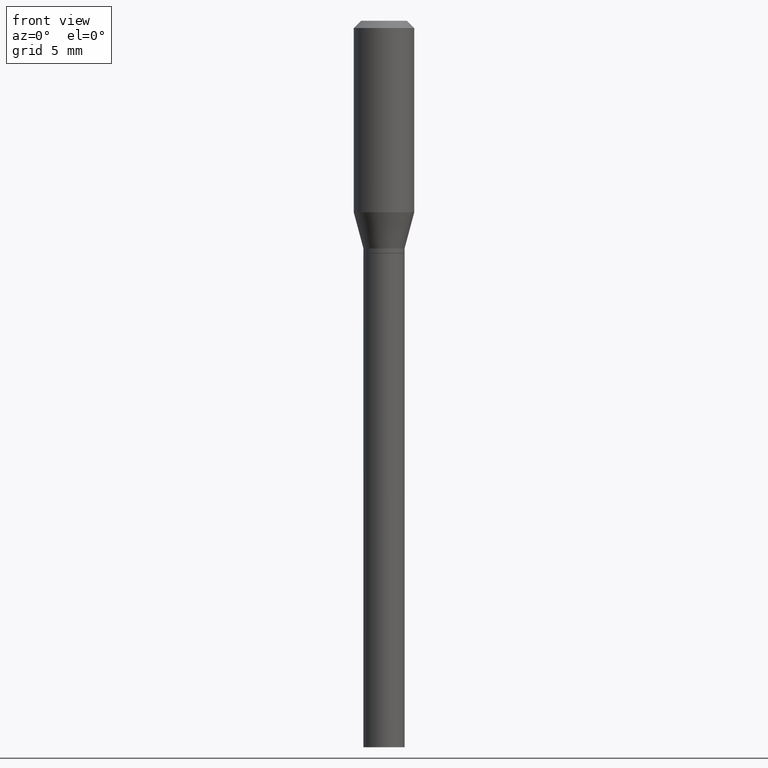
[diagram: clean part render]
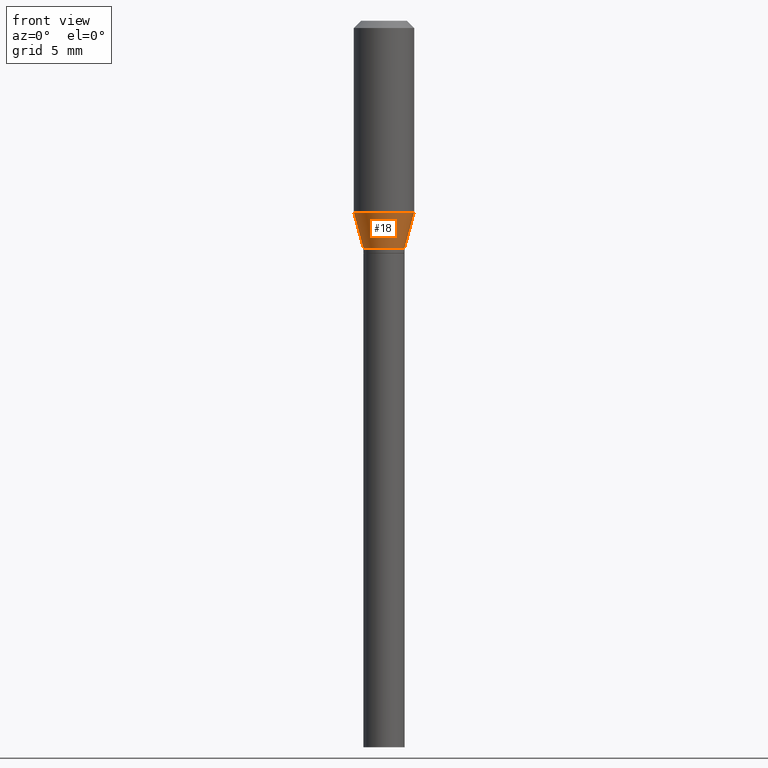
[diagram: same view with one face highlighted and labeled with its STEP entity id]
A machine part, front view. The second image highlights one B-rep face of the part: STEP entity #18.
In plain terms, the highlighted conical surface has half-angle 15 deg.
Its self-contained STEP definition (entity closure, byte-faithful):
#4 = DIRECTION ( 'NONE',  ( 1.000000000000000000, -6.982962677686269077E-15, 0.000000000000000000 ) ) ;
#7 = EDGE_CURVE ( 'NONE', #368, #262, #136, .T. ) ;
#10 = VECTOR ( 'NONE', #112, 39.37007874015748854 ) ;
#18 = ADVANCED_FACE ( 'NONE', ( #445 ), #342, .T. ) ;
#33 = ORIENTED_EDGE ( 'NONE', *, *, #385, .T. ) ;
#36 = ORIENTED_EDGE ( 'NONE', *, *, #7, .T. ) ;
#49 = VERTEX_POINT ( 'NONE', #413 ) ;
#63 = CARTESIAN_POINT ( 'NONE',  ( -0.04249999999999994060, -1.137657435479813503E-15, -0.4700000000000000289 ) ) ;
#72 = CIRCLE ( 'NONE', #398, 0.06250000000000000000 ) ;
#102 = LINE ( 'NONE', #175, #225 ) ;
#112 = DIRECTION ( 'NONE',  ( 0.2588190451025212391, 1.565188264969622362E-15, 0.9659258262890679791 ) ) ;
#136 = CIRCLE ( 'NONE', #367, 0.04249999999999994060 ) ;
#150 = ORIENTED_EDGE ( 'NONE', *, *, #465, .F. ) ;
#175 = CARTESIAN_POINT ( 'NONE',  ( -0.04249999999999994060, -1.339015566558236180E-15, -0.4700000000000000289 ) ) ;
#179 = AXIS2_PLACEMENT_3D ( 'NONE', #302, #446, #228 ) ;
#183 = DIRECTION ( 'NONE',  ( 1.000000000000000000, -6.982962677686266711E-15, 0.000000000000000000 ) ) ;
#214 = LINE ( 'NONE', #393, #10 ) ;
#225 = VECTOR ( 'NONE', #434, 39.37007874015748854 ) ;
#228 = DIRECTION ( 'NONE',  ( 1.000000000000000000, -6.982962677686269077E-15, 0.000000000000000000 ) ) ;
#243 = VERTEX_POINT ( 'NONE', #420 ) ;
#246 = CARTESIAN_POINT ( 'NONE',  ( 0.04249999999999994060, -1.937772143057944692E-15, -0.4700000000000000289 ) ) ;
#258 = CARTESIAN_POINT ( 'NONE',  ( 9.668380622468593325E-30, -1.380388514251453836E-15, -0.3953589838486224473 ) ) ;
#262 = VERTEX_POINT ( 'NONE', #246 ) ;
#301 = CARTESIAN_POINT ( 'NONE',  ( 1.149370338907014223E-29, -1.640996229256278436E-15, -0.4700000000000000289 ) ) ;
#302 = CARTESIAN_POINT ( 'NONE',  ( 1.149370338907014223E-29, -1.640996229256278436E-15, -0.4700000000000000289 ) ) ;
#303 = EDGE_LOOP ( 'NONE', ( #323, #36, #33, #150 ) ) ;
#323 = ORIENTED_EDGE ( 'NONE', *, *, #379, .F. ) ;
#342 = CONICAL_SURFACE ( 'NONE', #179, 0.04249999999999994060, 0.2617993877991499629 ) ;
#367 = AXIS2_PLACEMENT_3D ( 'NONE', #301, #372, #4 ) ;
#368 = VERTEX_POINT ( 'NONE', #63 ) ;
#372 = DIRECTION ( 'NONE',  ( -2.445468806185136597E-29, 3.491481338843145583E-15, 1.000000000000000000 ) ) ;
#379 = EDGE_CURVE ( 'NONE', #368, #243, #102, .T. ) ;
#385 = EDGE_CURVE ( 'NONE', #262, #49, #214, .T. ) ;
#393 = CARTESIAN_POINT ( 'NONE',  ( 0.04249999999999994060, -1.937772143057944692E-15, -0.4700000000000000289 ) ) ;
#398 = AXIS2_PLACEMENT_3D ( 'NONE', #258, #402, #183 ) ;
#402 = DIRECTION ( 'NONE',  ( -2.445468806185136597E-29, 3.491481338843145583E-15, 1.000000000000000000 ) ) ;
#413 = CARTESIAN_POINT ( 'NONE',  ( 0.06250000000000000000, -1.816823681606845702E-15, -0.3953589838486224473 ) ) ;
#420 = CARTESIAN_POINT ( 'NONE',  ( -0.06250000000000000000, -9.362993044013910222E-16, -0.3953589838486224473 ) ) ;
#434 = DIRECTION ( 'NONE',  ( -0.2588190451025212391, 5.211531920934549464E-15, 0.9659258262890679791 ) ) ;
#445 = FACE_OUTER_BOUND ( 'NONE', #303, .T. ) ;
#446 = DIRECTION ( 'NONE',  ( -2.445468806185136597E-29, 3.491481338843145583E-15, 1.000000000000000000 ) ) ;
#465 = EDGE_CURVE ( 'NONE', #243, #49, #72, .T. ) ;